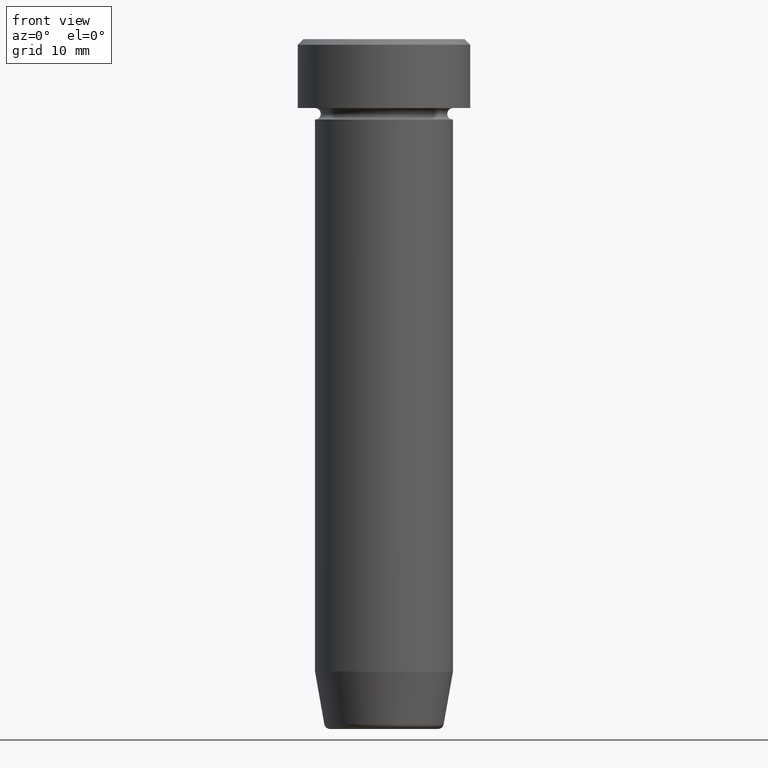
[diagram: clean part render]
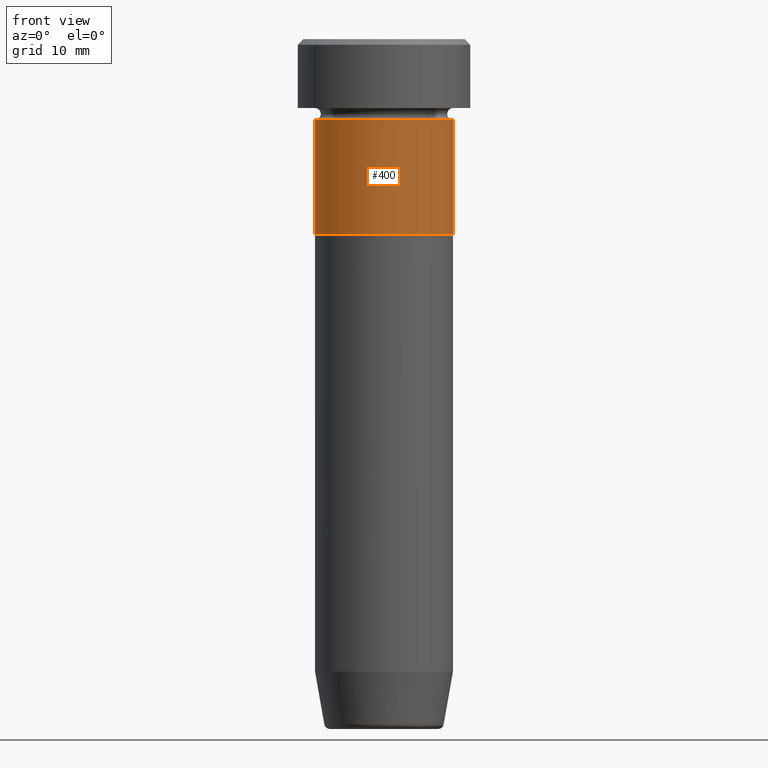
[diagram: same view with one face highlighted and labeled with its STEP entity id]
A machine part, front view. The second image highlights one B-rep face of the part: STEP entity #400.
In plain terms, the highlighted cylindrical surface (partial cylindrical patch) has radius 6 mm, axis along (-0, -0, 1).
Its self-contained STEP definition (entity closure, byte-faithful):
#4 = ORIENTED_EDGE ( 'NONE', *, *, #236, .T. ) ;
#6 = VERTEX_POINT ( 'NONE', #372 ) ;
#23 = CARTESIAN_POINT ( 'NONE',  ( 0.000000000000000000, 0.000000000000000000, -17.00000000000000000 ) ) ;
#32 = DIRECTION ( 'NONE',  ( 1.000000000000000000, 0.000000000000000000, 0.000000000000000000 ) ) ;
#38 = VECTOR ( 'NONE', #585, 1000.000000000000000 ) ;
#43 = EDGE_LOOP ( 'NONE', ( #441, #4, #397, #534 ) ) ;
#44 = FACE_OUTER_BOUND ( 'NONE', #43, .T. ) ;
#45 = CIRCLE ( 'NONE', #393, 6.000000000000000000 ) ;
#66 = LINE ( 'NONE', #119, #38 ) ;
#68 = DIRECTION ( 'NONE',  ( -0.000000000000000000, -0.000000000000000000, 1.000000000000000000 ) ) ;
#92 = VECTOR ( 'NONE', #428, 1000.000000000000000 ) ;
#111 = EDGE_CURVE ( 'NONE', #6, #210, #373, .T. ) ;
#118 = DIRECTION ( 'NONE',  ( -0.000000000000000000, -0.000000000000000000, 1.000000000000000000 ) ) ;
#119 = CARTESIAN_POINT ( 'NONE',  ( 6.000000000000000000, 0.000000000000000000, 0.000000000000000000 ) ) ;
#140 = CARTESIAN_POINT ( 'NONE',  ( 0.000000000000000000, 0.000000000000000000, 0.000000000000000000 ) ) ;
#159 = VERTEX_POINT ( 'NONE', #341 ) ;
#184 = DIRECTION ( 'NONE',  ( -0.000000000000000000, -0.000000000000000000, 1.000000000000000000 ) ) ;
#208 = CIRCLE ( 'NONE', #255, 6.000000000000000000 ) ;
#210 = VERTEX_POINT ( 'NONE', #369 ) ;
#215 = EDGE_CURVE ( 'NONE', #536, #159, #66, .T. ) ;
#233 = CARTESIAN_POINT ( 'NONE',  ( 6.000000000000000000, 0.000000000000000000, -17.00000000000000000 ) ) ;
#236 = EDGE_CURVE ( 'NONE', #6, #536, #45, .T. ) ;
#255 = AXIS2_PLACEMENT_3D ( 'NONE', #419, #118, #310 ) ;
#264 = AXIS2_PLACEMENT_3D ( 'NONE', #140, #184, #32 ) ;
#282 = CYLINDRICAL_SURFACE ( 'NONE', #264, 6.000000000000000000 ) ;
#310 = DIRECTION ( 'NONE',  ( 1.000000000000000000, 0.000000000000000000, 0.000000000000000000 ) ) ;
#341 = CARTESIAN_POINT ( 'NONE',  ( 6.000000000000000000, 0.000000000000000000, -7.000000000000000000 ) ) ;
#369 = CARTESIAN_POINT ( 'NONE',  ( -6.000000000000000000, 7.347880794884119736E-16, -7.000000000000000000 ) ) ;
#372 = CARTESIAN_POINT ( 'NONE',  ( -6.000000000000000000, 7.347880794884119736E-16, -17.00000000000000000 ) ) ;
#373 = LINE ( 'NONE', #504, #92 ) ;
#393 = AXIS2_PLACEMENT_3D ( 'NONE', #23, #68, #468 ) ;
#397 = ORIENTED_EDGE ( 'NONE', *, *, #215, .T. ) ;
#400 = ADVANCED_FACE ( 'NONE', ( #44 ), #282, .T. ) ;
#410 = EDGE_CURVE ( 'NONE', #210, #159, #208, .T. ) ;
#419 = CARTESIAN_POINT ( 'NONE',  ( 0.000000000000000000, 0.000000000000000000, -7.000000000000000000 ) ) ;
#428 = DIRECTION ( 'NONE',  ( -0.000000000000000000, -0.000000000000000000, 1.000000000000000000 ) ) ;
#441 = ORIENTED_EDGE ( 'NONE', *, *, #111, .F. ) ;
#468 = DIRECTION ( 'NONE',  ( 1.000000000000000000, 0.000000000000000000, 0.000000000000000000 ) ) ;
#504 = CARTESIAN_POINT ( 'NONE',  ( -6.000000000000000000, 7.347880794884119736E-16, 0.000000000000000000 ) ) ;
#534 = ORIENTED_EDGE ( 'NONE', *, *, #410, .F. ) ;
#536 = VERTEX_POINT ( 'NONE', #233 ) ;
#585 = DIRECTION ( 'NONE',  ( -0.000000000000000000, -0.000000000000000000, 1.000000000000000000 ) ) ;